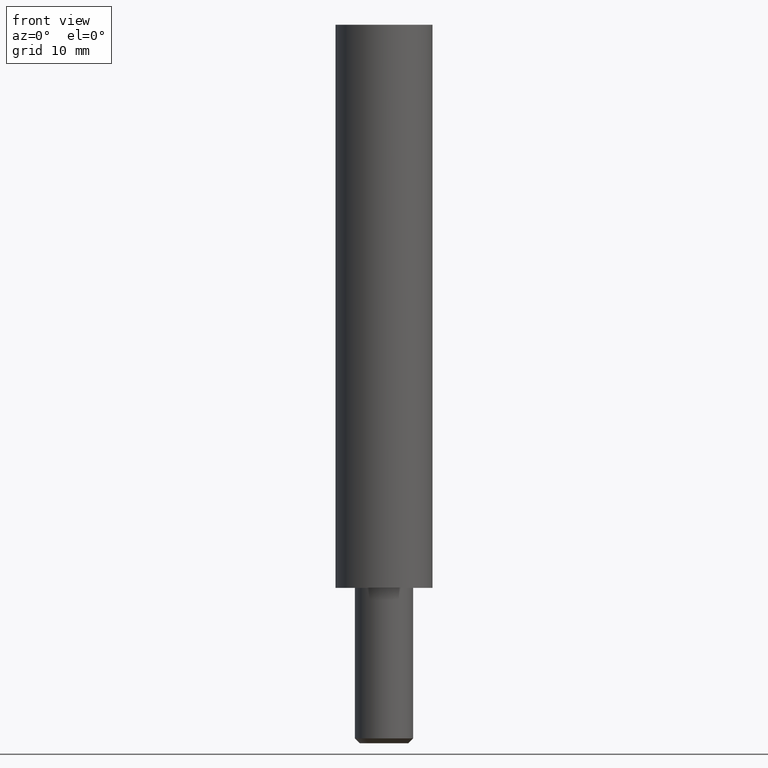
[diagram: clean part render]
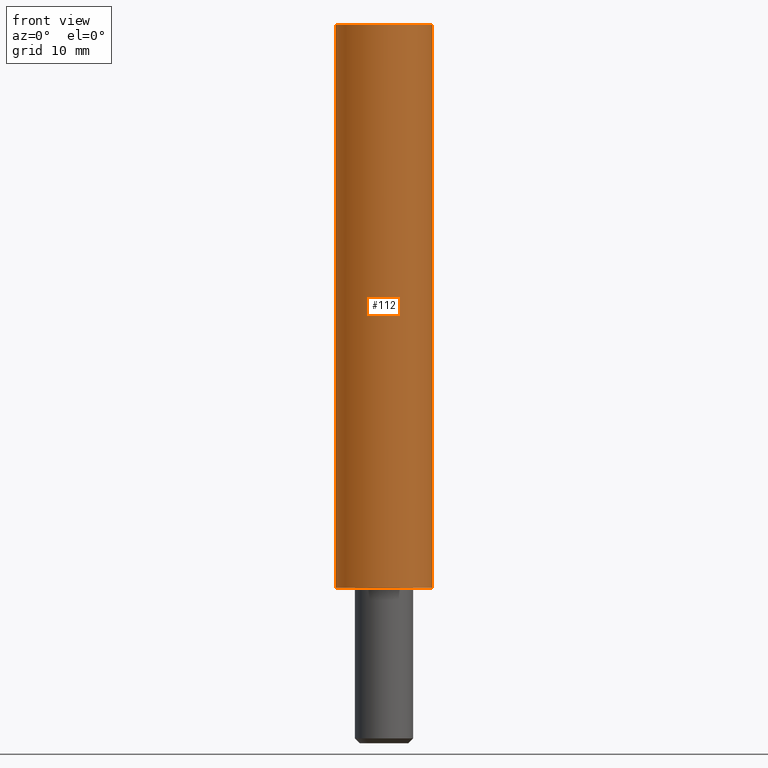
[diagram: same view with one face highlighted and labeled with its STEP entity id]
A machine part, front view. The second image highlights one B-rep face of the part: STEP entity #112.
In plain terms, the highlighted cylindrical surface (bore or boss wall) has radius 5 mm, axis along (0, -0, -1).
Its self-contained STEP definition (entity closure, byte-faithful):
#7=CARTESIAN_POINT('',(5.0,3.551476E-015,58.0));
#8=VERTEX_POINT('',#7);
#9=CARTESIAN_POINT('',(-5.0,3.551476E-015,58.0));
#10=VERTEX_POINT('',#9);
#11=CARTESIAN_POINT('',(0.0,3.551476E-015,58.0));
#12=DIRECTION('',(0.0,-6.123234E-017,-1.0));
#13=DIRECTION('',(-1.0,0.0,0.0));
#14=AXIS2_PLACEMENT_3D('',#11,#12,#13);
#15=CIRCLE('',#14,5.0);
#16=EDGE_CURVE('',#8,#10,#15,.T.);
#18=CARTESIAN_POINT('',(0.0,3.551476E-015,58.0));
#19=DIRECTION('',(0.0,-6.123234E-017,-1.0));
#20=DIRECTION('',(-1.0,0.0,0.0));
#21=AXIS2_PLACEMENT_3D('',#18,#19,#20);
#22=CIRCLE('',#21,5.0);
#23=EDGE_CURVE('',#10,#8,#22,.T.);
#78=CARTESIAN_POINT('',(0.0,3.551476E-015,58.0));
#79=DIRECTION('',(0.0,-6.123234E-017,-1.0));
#80=DIRECTION('',(-1.0,0.0,0.0));
#81=AXIS2_PLACEMENT_3D('',#78,#79,#80);
#82=CYLINDRICAL_SURFACE('',#81,5.0);
#83=ORIENTED_EDGE('',*,*,#23,.T.);
#84=ORIENTED_EDGE('',*,*,#16,.T.);
#85=CARTESIAN_POINT('',(-5.0,3.944305E-031,0.0));
#86=VERTEX_POINT('',#85);
#87=CARTESIAN_POINT('',(-5.0,3.551476E-015,58.0));
#88=DIRECTION('',(0.0,0.0,-1.0));
#89=VECTOR('',#88,58.0);
#90=LINE('',#87,#89);
#91=EDGE_CURVE('',#10,#86,#90,.T.);
#92=ORIENTED_EDGE('',*,*,#91,.T.);
#93=CARTESIAN_POINT('',(5.0,3.944305E-031,0.0));
#94=VERTEX_POINT('',#93);
#95=CARTESIAN_POINT('',(0.0,3.944305E-031,0.0));
#96=DIRECTION('',(0.0,-6.123234E-017,-1.0));
#97=DIRECTION('',(-1.0,0.0,0.0));
#98=AXIS2_PLACEMENT_3D('',#95,#96,#97);
#99=CIRCLE('',#98,5.0);
#100=EDGE_CURVE('',#94,#86,#99,.T.);
#101=ORIENTED_EDGE('',*,*,#100,.F.);
#102=CARTESIAN_POINT('',(0.0,3.944305E-031,0.0));
#103=DIRECTION('',(0.0,-6.123234E-017,-1.0));
#104=DIRECTION('',(-1.0,0.0,0.0));
#105=AXIS2_PLACEMENT_3D('',#102,#103,#104);
#106=CIRCLE('',#105,5.0);
#107=EDGE_CURVE('',#86,#94,#106,.T.);
#108=ORIENTED_EDGE('',*,*,#107,.F.);
#109=ORIENTED_EDGE('',*,*,#91,.F.);
#110=EDGE_LOOP('',(#83,#84,#92,#101,#108,#109));
#111=FACE_OUTER_BOUND('',#110,.T.);
#112=ADVANCED_FACE('',(#111),#82,.T.);